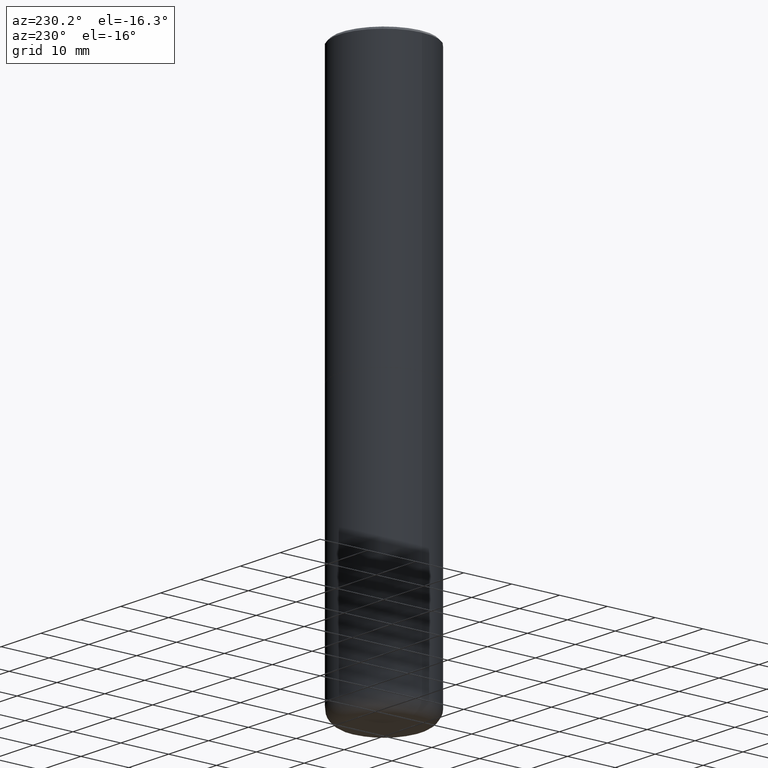
[diagram: clean part render]
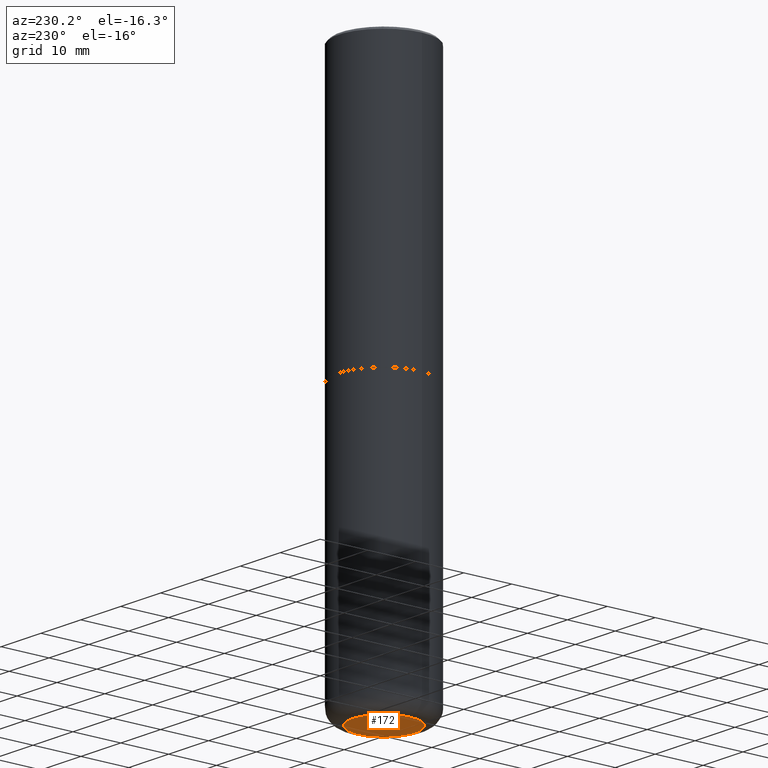
[diagram: same view with one face highlighted and labeled with its STEP entity id]
A machine part, auxiliary view. The second image highlights one B-rep face of the part: STEP entity #172.
In plain terms, the highlighted planar face has unit normal (0, -0, -1).
Its self-contained STEP definition (entity closure, byte-faithful):
#58 = FACE_OUTER_BOUND ( 'NONE', #295, .T. ) ;
#60 = CARTESIAN_POINT ( 'NONE',  ( 4.271765187526177171E-29, -2.535348247302097113E-14, -4.500000000000000888 ) ) ;
#62 = CARTESIAN_POINT ( 'NONE',  ( -0.2550000000000000044, -1.326396752681925022E-14, -4.500000000000000888 ) ) ;
#95 = DIRECTION ( 'NONE',  ( 2.438088387897960049E-29, -3.491481338843145188E-15, -1.000000000000000000 ) ) ;
#150 = DIRECTION ( 'NONE',  ( 1.000000000000000000, -6.982962677686260400E-15, 0.000000000000000000 ) ) ;
#172 = ADVANCED_FACE ( 'NONE', ( #58 ), #212, .T. ) ;
#187 = DIRECTION ( 'NONE',  ( 1.000000000000000000, -6.982962677686260400E-15, 0.000000000000000000 ) ) ;
#191 = DIRECTION ( 'NONE',  ( -2.445468806185136597E-29, 3.491481338843145583E-15, 1.000000000000000000 ) ) ;
#198 = EDGE_CURVE ( 'NONE', #418, #215, #356, .T. ) ;
#207 = CIRCLE ( 'NONE', #245, 0.2550000000000000044 ) ;
#210 = DIRECTION ( 'NONE',  ( -1.000000000000000000, 6.982962677686265922E-15, -4.876176775795935793E-29 ) ) ;
#212 = PLANE ( 'NONE',  #397 ) ;
#215 = VERTEX_POINT ( 'NONE', #62 ) ;
#218 = CARTESIAN_POINT ( 'NONE',  ( 1.100460962783311693E-28, -1.571166602479415690E-14, -4.500000000000000888 ) ) ;
#243 = CARTESIAN_POINT ( 'NONE',  ( 1.100460962783311693E-28, -1.571166602479415690E-14, -4.500000000000000888 ) ) ;
#245 = AXIS2_PLACEMENT_3D ( 'NONE', #218, #191, #150 ) ;
#256 = CARTESIAN_POINT ( 'NONE',  ( 0.2550000000000000044, -1.749232150760415365E-14, -4.500000000000000888 ) ) ;
#290 = AXIS2_PLACEMENT_3D ( 'NONE', #243, #378, #187 ) ;
#295 = EDGE_LOOP ( 'NONE', ( #412, #414 ) ) ;
#297 = EDGE_CURVE ( 'NONE', #215, #418, #207, .T. ) ;
#356 = CIRCLE ( 'NONE', #290, 0.2550000000000000044 ) ;
#378 = DIRECTION ( 'NONE',  ( -2.445468806185136597E-29, 3.491481338843145583E-15, 1.000000000000000000 ) ) ;
#397 = AXIS2_PLACEMENT_3D ( 'NONE', #60, #95, #210 ) ;
#412 = ORIENTED_EDGE ( 'NONE', *, *, #198, .F. ) ;
#414 = ORIENTED_EDGE ( 'NONE', *, *, #297, .F. ) ;
#418 = VERTEX_POINT ( 'NONE', #256 ) ;